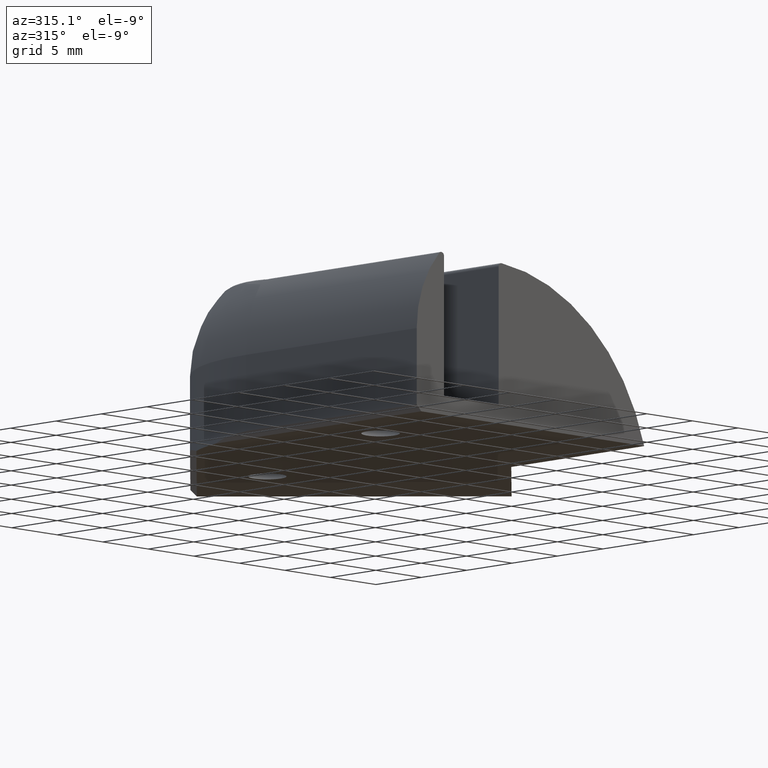
[diagram: clean part render]
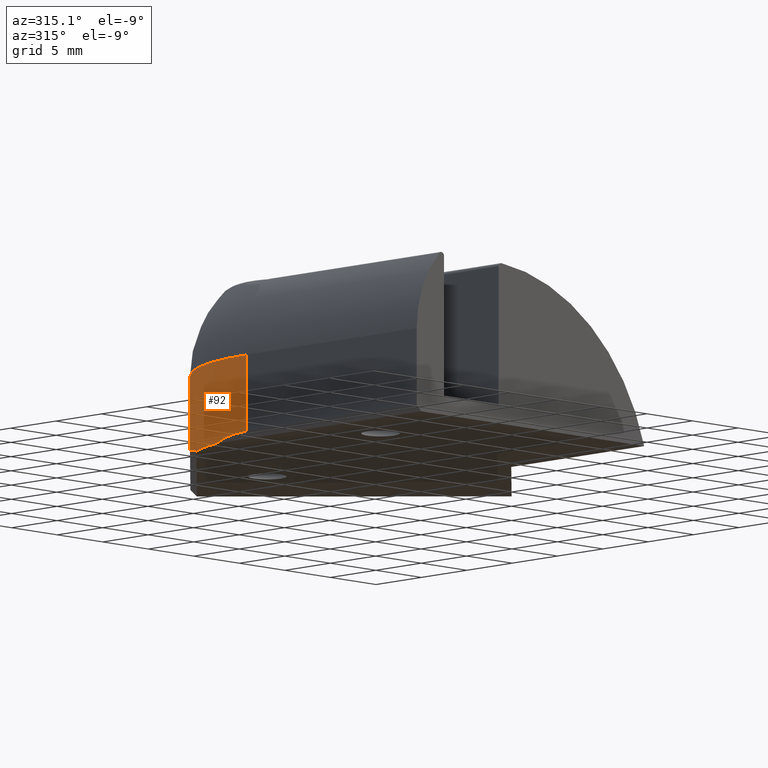
[diagram: same view with one face highlighted and labeled with its STEP entity id]
A machine part, auxiliary view. The second image highlights one B-rep face of the part: STEP entity #92.
In plain terms, the highlighted cylindrical surface (partial cylindrical patch) has radius 15 mm, axis along (0, 0, -1).
Its self-contained STEP definition (entity closure, byte-faithful):
#7=CARTESIAN_POINT('',(-22.947822295233664,11.670825096934834,-3.552714E-015));
#8=VERTEX_POINT('',#7);
#9=CARTESIAN_POINT('',(-20.585681544306709,14.740071921941777,0.499999499999704));
#10=VERTEX_POINT('',#9);
#11=CARTESIAN_POINT('',(-9.979079826508501,4.133470204143567,-14.500000499986385));
#12=DIRECTION('',(-0.499999999999768,0.499999999999768,-0.707106781186876));
#13=DIRECTION('',(0.500000000000232,-0.500000000000232,-0.707106781186219));
#14=AXIS2_PLACEMENT_3D('',#11,#12,#13);
#15=ELLIPSE('',#14,21.213203435586575,15.0);
#16=EDGE_CURVE('',#8,#10,#15,.T.);
#43=CARTESIAN_POINT('',(-9.979079826508496,4.133470204143563,6.499993500000856));
#44=DIRECTION('',(0.0,0.0,-1.0));
#45=DIRECTION('',(-1.0,-2.368476E-016,0.0));
#46=AXIS2_PLACEMENT_3D('',#43,#44,#45);
#47=CYLINDRICAL_SURFACE('',#46,15.0);
#48=CARTESIAN_POINT('',(-20.585681544306709,14.740071921941777,6.499993500000856));
#49=VERTEX_POINT('',#48);
#50=CARTESIAN_POINT('',(-24.979079826508496,4.133470204143563,6.499993500000856));
#51=VERTEX_POINT('',#50);
#52=CARTESIAN_POINT('',(-9.979079826508496,4.133470204143563,6.499993500000866));
#53=DIRECTION('',(-1.598721E-015,9.971650E-016,1.0));
#54=DIRECTION('',(-0.707106781186548,0.707106781186547,-1.835569E-015));
#55=AXIS2_PLACEMENT_3D('',#52,#53,#54);
#56=CIRCLE('',#55,15.000000000000002);
#57=EDGE_CURVE('',#49,#51,#56,.T.);
#58=ORIENTED_EDGE('',*,*,#57,.F.);
#59=CARTESIAN_POINT('',(-20.585681544306709,14.740071921941777,6.499993500000856));
#60=DIRECTION('',(0.0,0.0,-1.0));
#61=VECTOR('',#60,5.999994000001152);
#62=LINE('',#59,#61);
#63=EDGE_CURVE('',#49,#10,#62,.T.);
#64=ORIENTED_EDGE('',*,*,#63,.T.);
#65=ORIENTED_EDGE('',*,*,#16,.F.);
#66=CARTESIAN_POINT('',(-24.479080326508324,7.974041190338809,-3.552714E-015));
#67=VERTEX_POINT('',#66);
#68=CARTESIAN_POINT('',(-9.979079826508496,4.133470204143563,-3.552714E-015));
#69=DIRECTION('',(0.0,0.0,-1.0));
#70=DIRECTION('',(-1.0,-2.368476E-016,0.0));
#71=AXIS2_PLACEMENT_3D('',#68,#69,#70);
#72=CIRCLE('',#71,15.0);
#73=EDGE_CURVE('',#67,#8,#72,.T.);
#74=ORIENTED_EDGE('',*,*,#73,.F.);
#75=CARTESIAN_POINT('',(-24.979079826508496,4.133470204143563,0.499999499999704));
#76=VERTEX_POINT('',#75);
#77=CARTESIAN_POINT('',(-9.979079826508494,4.133470204143563,-14.500000499986363));
#78=DIRECTION('',(-0.707106781186219,0.0,-0.707106781186876));
#79=DIRECTION('',(0.707106781186876,0.0,-0.707106781186219));
#80=AXIS2_PLACEMENT_3D('',#77,#78,#79);
#81=ELLIPSE('',#80,21.213203435586575,15.0);
#82=EDGE_CURVE('',#76,#67,#81,.T.);
#83=ORIENTED_EDGE('',*,*,#82,.F.);
#84=CARTESIAN_POINT('',(-24.979079826508496,4.133470204143563,6.499993500000856));
#85=DIRECTION('',(0.0,0.0,-1.0));
#86=VECTOR('',#85,5.999994000001152);
#87=LINE('',#84,#86);
#88=EDGE_CURVE('',#51,#76,#87,.T.);
#89=ORIENTED_EDGE('',*,*,#88,.F.);
#90=EDGE_LOOP('',(#58,#64,#65,#74,#83,#89));
#91=FACE_OUTER_BOUND('',#90,.T.);
#92=ADVANCED_FACE('',(#91),#47,.T.);